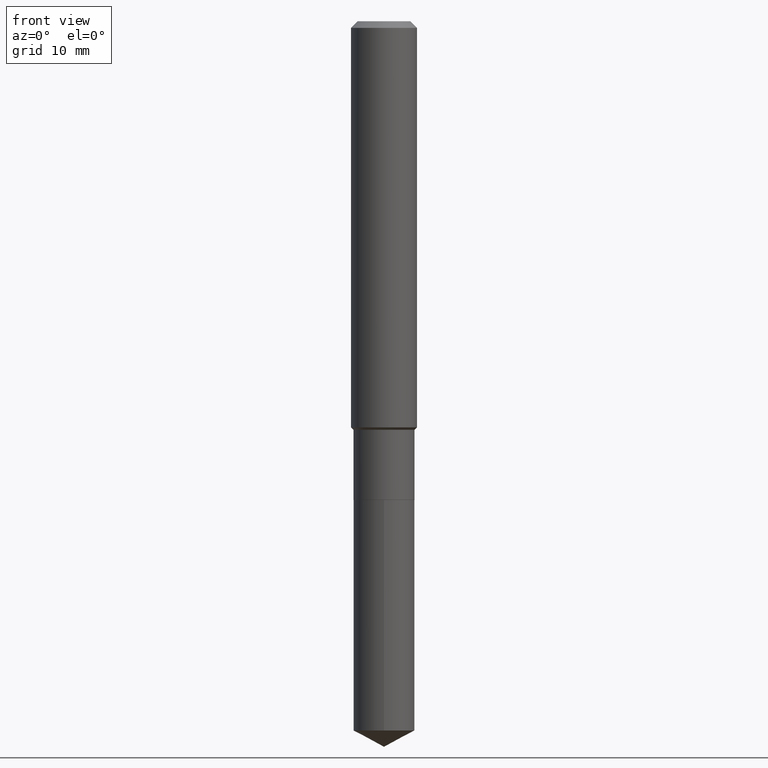
[diagram: clean part render]
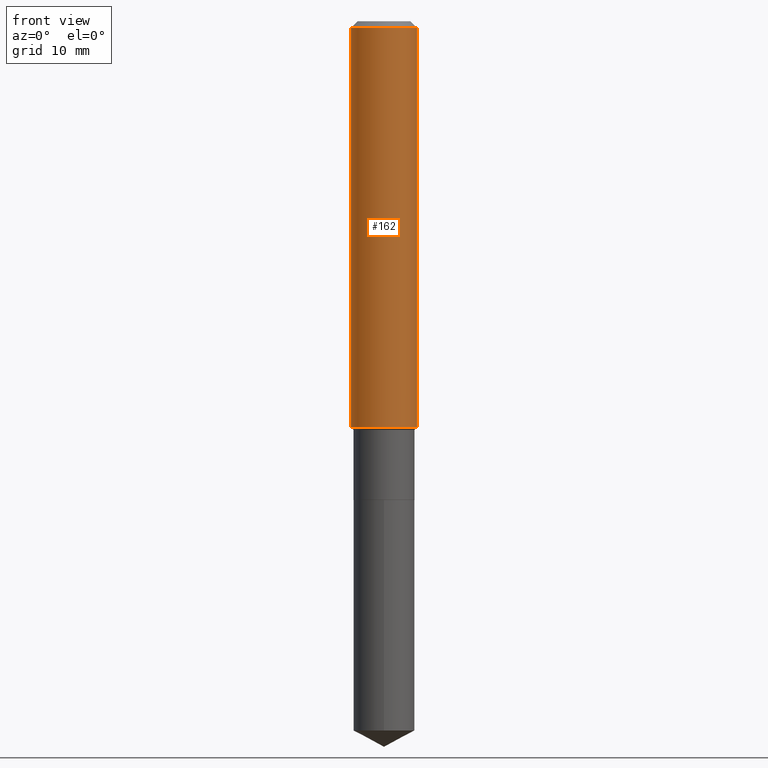
[diagram: same view with one face highlighted and labeled with its STEP entity id]
A machine part, front view. The second image highlights one B-rep face of the part: STEP entity #162.
In plain terms, the highlighted cylindrical surface (edge-blend (fillet) strip) has radius 2.9997 mm, axis along (-0, 0, 1).
Its self-contained STEP definition (entity closure, byte-faithful):
#6 = CYLINDRICAL_SURFACE ( 'NONE', #326, 0.1181000000000000799 ) ;
#36 = AXIS2_PLACEMENT_3D ( 'NONE', #283, #94, #209 ) ;
#41 = DIRECTION ( 'NONE',  ( 1.000000000000000000, -6.982962677686266711E-15, 4.876176775795936353E-29 ) ) ;
#47 = LINE ( 'NONE', #273, #425 ) ;
#64 = ORIENTED_EDGE ( 'NONE', *, *, #152, .F. ) ;
#83 = ORIENTED_EDGE ( 'NONE', *, *, #201, .T. ) ;
#86 = VERTEX_POINT ( 'NONE', #267 ) ;
#94 = DIRECTION ( 'NONE',  ( -2.445468806185136597E-29, 3.491481338843145583E-15, 1.000000000000000000 ) ) ;
#125 = CIRCLE ( 'NONE', #294, 0.1181000000000001632 ) ;
#152 = EDGE_CURVE ( 'NONE', #86, #362, #427, .T. ) ;
#156 = CARTESIAN_POINT ( 'NONE',  ( 0.000000000000000000, 0.000000000000000000, 0.000000000000000000 ) ) ;
#159 = DIRECTION ( 'NONE',  ( -2.445468806185136597E-29, 3.491481338843145583E-15, 1.000000000000000000 ) ) ;
#162 = ADVANCED_FACE ( 'NONE', ( #380 ), #6, .T. ) ;
#175 = ORIENTED_EDGE ( 'NONE', *, *, #373, .F. ) ;
#196 = DIRECTION ( 'NONE',  ( 1.000000000000000000, -6.982962677686263555E-15, 0.000000000000000000 ) ) ;
#200 = DIRECTION ( 'NONE',  ( -2.445468806185136597E-29, 3.491481338843145583E-15, 1.000000000000000000 ) ) ;
#201 = EDGE_CURVE ( 'NONE', #434, #358, #47, .T. ) ;
#203 = DIRECTION ( 'NONE',  ( -2.445468806185136877E-29, 3.491481338843145188E-15, 1.000000000000000000 ) ) ;
#209 = DIRECTION ( 'NONE',  ( 1.000000000000000000, -6.982962677686266711E-15, 0.000000000000000000 ) ) ;
#216 = EDGE_CURVE ( 'NONE', #86, #434, #125, .T. ) ;
#245 = CIRCLE ( 'NONE', #36, 0.1180999999999999966 ) ;
#267 = CARTESIAN_POINT ( 'NONE',  ( -0.1181000000000001632, -4.239208636414675266E-15, -1.454499999999999682 ) ) ;
#273 = CARTESIAN_POINT ( 'NONE',  ( 0.1181000000000000799, -8.246878922347486570E-16, 5.758764772215004644E-30 ) ) ;
#276 = DIRECTION ( 'NONE',  ( -2.445468806185136877E-29, 3.491481338843145188E-15, 1.000000000000000000 ) ) ;
#283 = CARTESIAN_POINT ( 'NONE',  ( 5.776197320209327532E-31, -8.246878922347559293E-17, -0.02362000000000014088 ) ) ;
#294 = AXIS2_PLACEMENT_3D ( 'NONE', #317, #159, #196 ) ;
#306 = ORIENTED_EDGE ( 'NONE', *, *, #216, .T. ) ;
#317 = CARTESIAN_POINT ( 'NONE',  ( 3.556934378596280140E-29, -5.078359607347354252E-15, -1.454499999999999682 ) ) ;
#326 = AXIS2_PLACEMENT_3D ( 'NONE', #156, #200, #41 ) ;
#344 = VECTOR ( 'NONE', #276, 39.37007874015748143 ) ;
#350 = CARTESIAN_POINT ( 'NONE',  ( -0.1181000000000000799, 8.391509709326788873E-16, -5.809262341591047988E-30 ) ) ;
#352 = CARTESIAN_POINT ( 'NONE',  ( 0.1181000000000001632, -5.903047499582104093E-15, -1.454499999999999682 ) ) ;
#357 = CARTESIAN_POINT ( 'NONE',  ( -0.1180999999999999966, -1.741263227352735474E-15, -0.02362000000000014088 ) ) ;
#358 = VERTEX_POINT ( 'NONE', #471 ) ;
#362 = VERTEX_POINT ( 'NONE', #357 ) ;
#373 = EDGE_CURVE ( 'NONE', #362, #358, #245, .T. ) ;
#380 = FACE_OUTER_BOUND ( 'NONE', #438, .T. ) ;
#425 = VECTOR ( 'NONE', #203, 39.37007874015748143 ) ;
#427 = LINE ( 'NONE', #350, #344 ) ;
#434 = VERTEX_POINT ( 'NONE', #352 ) ;
#438 = EDGE_LOOP ( 'NONE', ( #64, #306, #83, #175 ) ) ;
#471 = CARTESIAN_POINT ( 'NONE',  ( 0.1180999999999999966, -9.071566814582237199E-16, -0.02362000000000014088 ) ) ;